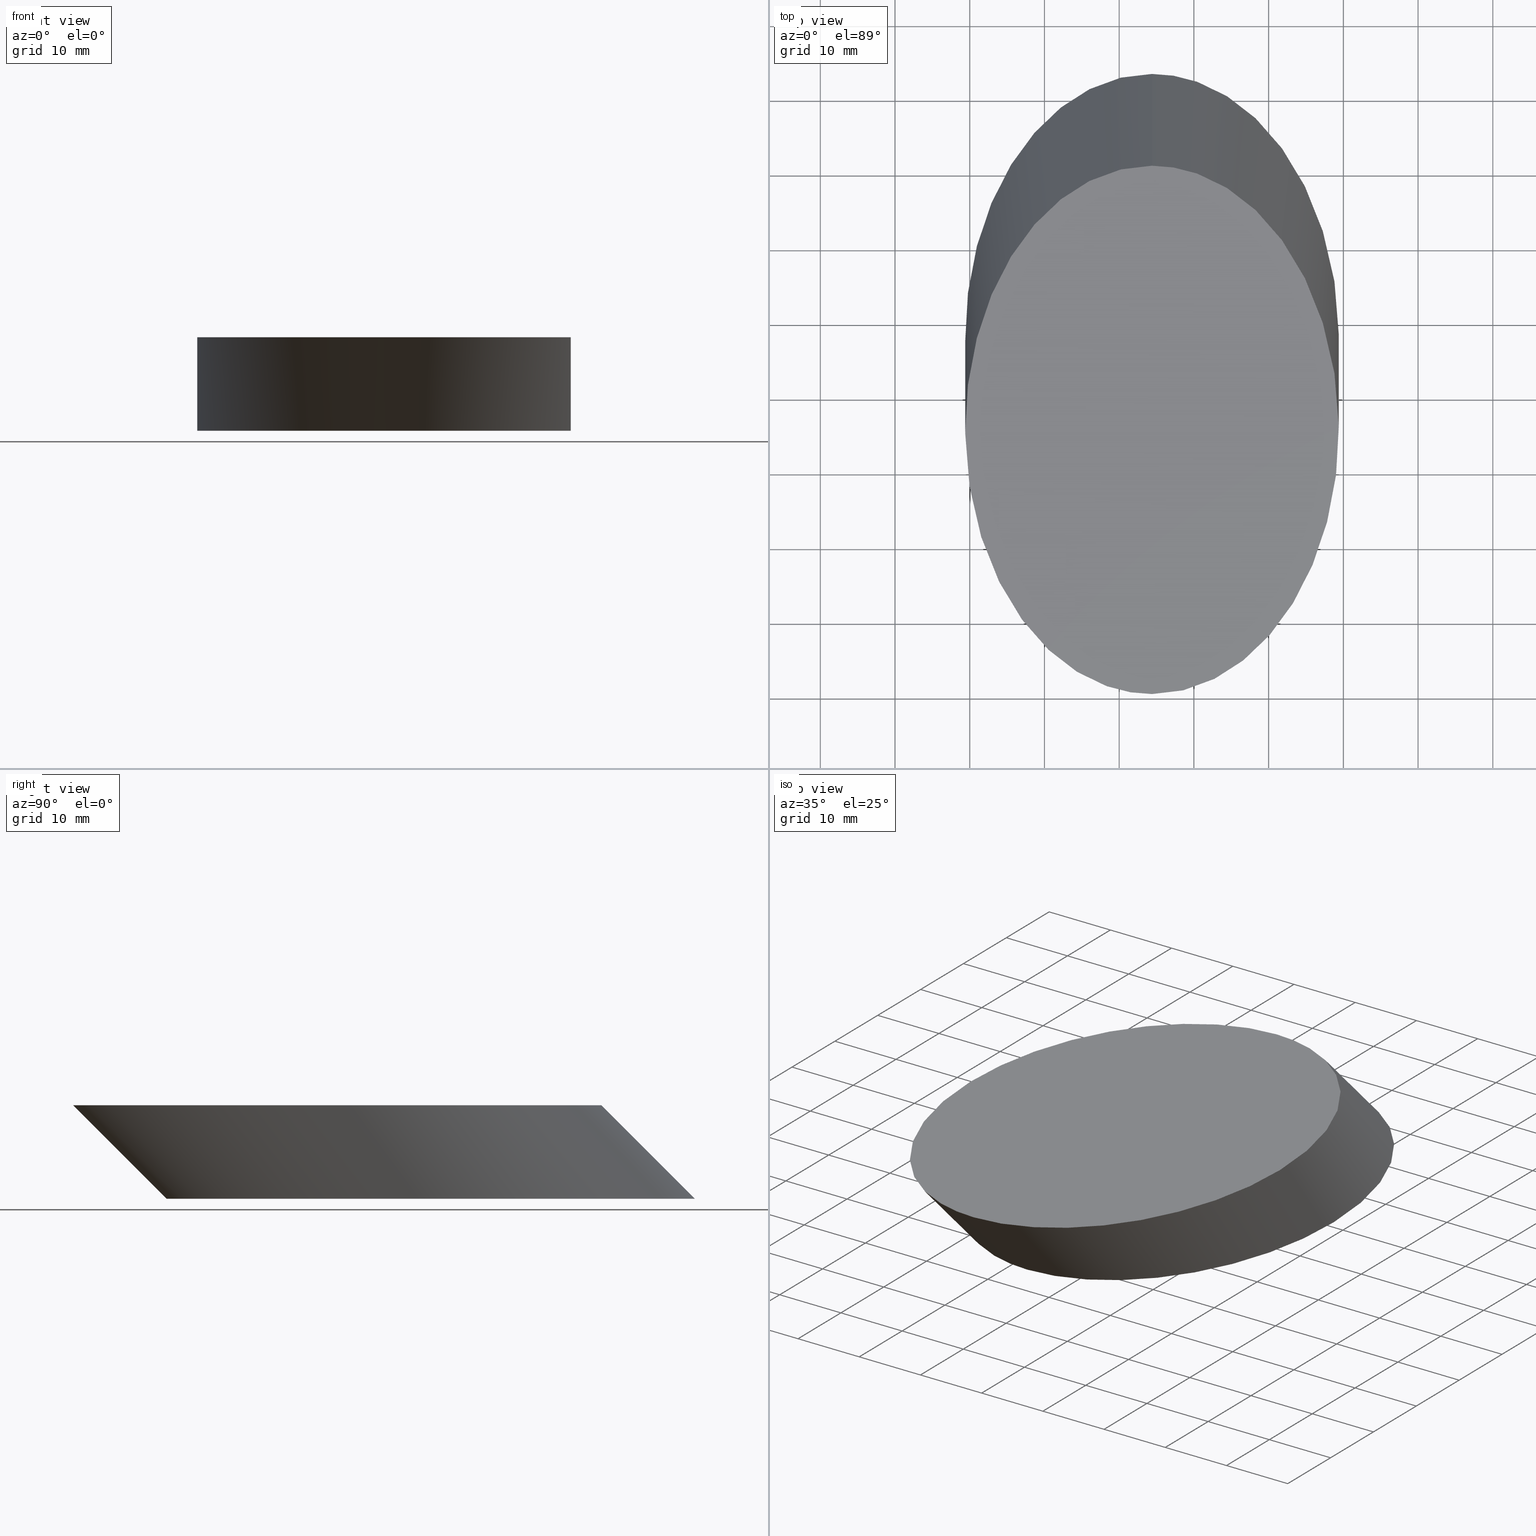
[diagram: canonical four-view strip — front | top / right | iso, engineering-drawing reading convention]
A machine part, canonical four-view strip (front | top / right | iso — engineering-drawing reading convention). The complete STEP part file that produces these views, byte-faithful:
ISO-10303-21;
HEADER;
FILE_DESCRIPTION (( 'STEP AP214' ),
    '1' );
FILE_NAME ('290004.STEP',
    '2019-08-12T02:04:07',
    ( '' ),
    ( '' ),
    'SwSTEP 2.0',
    'SolidWorks 2016',
    '' );
FILE_SCHEMA (( 'AUTOMOTIVE_DESIGN' ));
ENDSEC;

DATA;
#1 = ADVANCED_FACE ( 'NONE', ( #28 ), #76, .T. ) ;
#2 = FACE_OUTER_BOUND ( 'NONE', #49, .T. ) ;
#3 =( BOUNDED_SURFACE ( )  B_SPLINE_SURFACE ( 3, 1, ( 
 ( #135, #66 ),
 ( #69, #111 ),
 ( #31, #12 ),
 ( #85, #72 ) ),
 .UNSPECIFIED., .F., .F., .F. ) 
 B_SPLINE_SURFACE_WITH_KNOTS ( ( 4, 4 ),
 ( 2, 2 ),
 ( 0.0000000000000000000, 1.000000000000000000 ),
 ( 0.0000000000000000000, 1.000000000000000000 ),
 .UNSPECIFIED. ) 
 GEOMETRIC_REPRESENTATION_ITEM ( )  RATIONAL_B_SPLINE_SURFACE ( (
 ( 1.000000000000000000, 1.000000000000000000),
 ( 0.3333333333333333700, 0.3333333333333333700),
 ( 0.3333333333333333700, 0.3333333333333333700),
 ( 1.000000000000000000, 1.000000000000000000) ) ) 
 REPRESENTATION_ITEM ( '' )  SURFACE ( )  );
#4 = PRODUCT_DEFINITION ( 'δ֪', '', #24, #109 ) ;
#5 = PLANE ( 'NONE',  #132 ) ;
#6 = CARTESIAN_POINT ( 'NONE',  ( 4.392382981716055600, 83.65051942170029500, -12.50164789137814300 ) ) ;
#7 =( NAMED_UNIT ( * ) SI_UNIT ( $, .STERADIAN. ) SOLID_ANGLE_UNIT ( ) );
#8 = CARTESIAN_POINT ( 'NONE',  ( 54.39238298171605400, 0.4288715303221030100, 0.0000000000000000000 ) ) ;
#9 = ORIENTED_EDGE ( 'NONE', *, *, #15, .F. ) ;
#10 = PRODUCT ( '290004', '290004', '', ( #46 ) ) ;
#11 = PRODUCT_DEFINITION_SHAPE ( 'NONE', 'NONE',  #4 ) ;
#12 = CARTESIAN_POINT ( 'NONE',  ( 4.392382981716055600, 0.4288715303221168300, -2.602085213965210200E-015 ) ) ;
#13 = LINE ( 'NONE', #97, #133 ) ;
#14 =( BOUNDED_CURVE ( )  B_SPLINE_CURVE ( 3, ( #52, #101, #82, #146 ),
 .UNSPECIFIED., .F., .T. ) 
 B_SPLINE_CURVE_WITH_KNOTS ( ( 4, 4 ),
 ( 3.141592653589793100, 6.283185307179586200 ),
 .UNSPECIFIED. ) 
 CURVE ( )  GEOMETRIC_REPRESENTATION_ITEM ( )  RATIONAL_B_SPLINE_CURVE ( ( 1.000000000000000000, 0.3333333333333333700, 0.3333333333333333700, 1.000000000000000000 ) ) 
 REPRESENTATION_ITEM ( '' )  );
#15 = EDGE_CURVE ( 'NONE', #40, #88, #94, .T. ) ;
#16 = CARTESIAN_POINT ( 'NONE',  ( 54.39238298171605400, 35.78887153032210500, 0.0000000000000000000 ) ) ;
#17 =( GEOMETRIC_REPRESENTATION_CONTEXT ( 3 ) GLOBAL_UNCERTAINTY_ASSIGNED_CONTEXT ( ( #25 ) ) GLOBAL_UNIT_ASSIGNED_CONTEXT ( ( #106, #118, #61 ) ) REPRESENTATION_CONTEXT ( 'NONE', 'WORKASPACE' ) );
#18 = CARTESIAN_POINT ( 'NONE',  ( 54.39238298171605400, 48.29051942170028900, -12.50164789137814100 ) ) ;
#19 = SURFACE_SIDE_STYLE ('',( #34 ) ) ;
#20 = CARTESIAN_POINT ( 'NONE',  ( 54.39238298171605400, 0.4288715303221082300, -5.204170427930421300E-015 ) ) ;
#21 = ORIENTED_EDGE ( 'NONE', *, *, #23, .T. ) ;
#22 = ORIENTED_EDGE ( 'NONE', *, *, #23, .F. ) ;
#23 = EDGE_CURVE ( 'NONE', #88, #40, #14, .T. ) ;
#24 = PRODUCT_DEFINITION_FORMATION_WITH_SPECIFIED_SOURCE ( '�κ�', '', #10, .NOT_KNOWN. ) ;
#25 = UNCERTAINTY_MEASURE_WITH_UNIT (LENGTH_MEASURE( 1.000000000000000100E-005 ), #106, 'distance_accuracy_value', 'NONE');
#26 = DIRECTION ( 'NONE',  ( 1.000000000000000000, 0.0000000000000000000, -0.0000000000000000000 ) ) ;
#27 = PRESENTATION_LAYER_ASSIGNMENT (  '', '', ( #45 ) ) ;
#28 = FACE_OUTER_BOUND ( 'NONE', #53, .T. ) ;
#29 =( BOUNDED_CURVE ( )  B_SPLINE_CURVE ( 3, ( #105, #122, #121, #81 ),
 .UNSPECIFIED., .F., .T. ) 
 B_SPLINE_CURVE_WITH_KNOTS ( ( 4, 4 ),
 ( 0.0000000000000000000, 3.141592653589793100 ),
 .UNSPECIFIED. ) 
 CURVE ( )  GEOMETRIC_REPRESENTATION_ITEM ( )  RATIONAL_B_SPLINE_CURVE ( ( 1.000000000000000000, 0.3333333333333333700, 0.3333333333333333700, 1.000000000000000000 ) ) 
 REPRESENTATION_ITEM ( '' )  );
#30 =( NAMED_UNIT ( * ) PLANE_ANGLE_UNIT ( ) SI_UNIT ( $, .RADIAN. ) );
#31 = CARTESIAN_POINT ( 'NONE',  ( 4.392382981716055600, 12.93051942170029600, -12.50164789137813900 ) ) ;
#32 = SURFACE_STYLE_USAGE ( .BOTH. , #19 ) ;
#33 = APPLICATION_PROTOCOL_DEFINITION ( 'draft international standard', 'automotive_design', 1998, #70 ) ;
#34 = SURFACE_STYLE_FILL_AREA ( #43 ) ;
#35 = DIRECTION ( 'NONE',  ( 1.000000000000000000, 0.0000000000000000000, 0.0000000000000000000 ) ) ;
#36 = SHAPE_DEFINITION_REPRESENTATION ( #11, #102 ) ;
#37 = ORIENTED_EDGE ( 'NONE', *, *, #83, .F. ) ;
#38 = STYLED_ITEM ( 'NONE', ( #75 ), #102 ) ;
#39 = PRESENTATION_LAYER_ASSIGNMENT (  '', '', ( #38 ) ) ;
#40 = VERTEX_POINT ( 'NONE', #103 ) ;
#41 = ORIENTED_EDGE ( 'NONE', *, *, #15, .T. ) ;
#42 = DIRECTION ( 'NONE',  ( 0.0000000000000000000, -0.7071067811865487900, 0.7071067811865463500 ) ) ;
#43 = FILL_AREA_STYLE ('',( #59 ) ) ;
#44 = SURFACE_STYLE_FILL_AREA ( #124 ) ;
#45 = STYLED_ITEM ( 'NONE', ( #51 ), #110 ) ;
#46 = PRODUCT_CONTEXT ( 'NONE', #70, 'mechanical' ) ;
#47 = APPLICATION_CONTEXT ( 'automotive_design' ) ;
#48 =( NAMED_UNIT ( * ) SI_UNIT ( $, .STERADIAN. ) SOLID_ANGLE_UNIT ( ) );
#49 = EDGE_LOOP ( 'NONE', ( #41, #86, #37, #65 ) ) ;
#50 = ADVANCED_FACE ( 'NONE', ( #138 ), #5, .F. ) ;
#51 = PRESENTATION_STYLE_ASSIGNMENT (( #32 ) ) ;
#52 = CARTESIAN_POINT ( 'NONE',  ( 54.39238298171605400, 12.93051942170028700, -12.50164789137814100 ) ) ;
#53 = EDGE_LOOP ( 'NONE', ( #114, #131 ) ) ;
#54 = UNCERTAINTY_MEASURE_WITH_UNIT (LENGTH_MEASURE( 1.000000000000000100E-005 ), #68, 'distance_accuracy_value', 'NONE');
#55 = CARTESIAN_POINT ( 'NONE',  ( 54.39238298171605400, 83.65051942170029500, -12.50164789137814100 ) ) ;
#56 = ORIENTED_EDGE ( 'NONE', *, *, #74, .F. ) ;
#57 = CARTESIAN_POINT ( 'NONE',  ( 54.39238298171605400, 12.93051942170028700, -12.50164789137814100 ) ) ;
#58 = DIRECTION ( 'NONE',  ( 1.000000000000000000, 0.0000000000000000000, -0.0000000000000000000 ) ) ;
#59 = FILL_AREA_STYLE_COLOUR ( '', #144 ) ;
#60 = CARTESIAN_POINT ( 'NONE',  ( 104.3923829817160500, 0.4288715303220986300, -5.204170427930420500E-015 ) ) ;
#61 =( NAMED_UNIT ( * ) SI_UNIT ( $, .STERADIAN. ) SOLID_ANGLE_UNIT ( ) );
#62 = LINE ( 'NONE', #112, #148 ) ;
#63 = APPLICATION_PROTOCOL_DEFINITION ( 'draft international standard', 'automotive_design', 1998, #47 ) ;
#64 =( NAMED_UNIT ( * ) PLANE_ANGLE_UNIT ( ) SI_UNIT ( $, .RADIAN. ) );
#65 = ORIENTED_EDGE ( 'NONE', *, *, #107, .F. ) ;
#66 = CARTESIAN_POINT ( 'NONE',  ( 54.39238298171605400, 71.14887153032211100, -1.734723475976807100E-015 ) ) ;
#67 = DIRECTION ( 'NONE',  ( 0.0000000000000000000, -0.7071067811865487900, 0.7071067811865463500 ) ) ;
#68 =( LENGTH_UNIT ( ) NAMED_UNIT ( * ) SI_UNIT ( .MILLI., .METRE. ) );
#69 = CARTESIAN_POINT ( 'NONE',  ( 4.392382981716055600, 83.65051942170029500, -12.50164789137813900 ) ) ;
#70 = APPLICATION_CONTEXT ( 'automotive_design' ) ;
#71 = SURFACE_SIDE_STYLE ('',( #44 ) ) ;
#72 = CARTESIAN_POINT ( 'NONE',  ( 54.39238298171605400, 0.4288715303221064500, -1.734723475976807100E-015 ) ) ;
#73 = ORIENTED_EDGE ( 'NONE', *, *, #107, .T. ) ;
#74 = EDGE_CURVE ( 'NONE', #108, #116, #89, .T. ) ;
#75 = PRESENTATION_STYLE_ASSIGNMENT (( #84 ) ) ;
#76 = PLANE ( 'NONE',  #90 ) ;
#77 = CARTESIAN_POINT ( 'NONE',  ( 54.39238298171605400, 71.14887153032211100, 0.0000000000000000000 ) ) ;
#78 = EDGE_CURVE ( 'NONE', #88, #108, #13, .T. ) ;
#79 = CARTESIAN_POINT ( 'NONE',  ( 54.39238298171605400, 12.93051942170028700, -12.50164789137814100 ) ) ;
#80 = CARTESIAN_POINT ( 'NONE',  ( 54.39238298171605400, 83.65051942170029500, -12.50164789137814100 ) ) ;
#81 = CARTESIAN_POINT ( 'NONE',  ( 54.39238298171605400, 0.4288715303221030100, 0.0000000000000000000 ) ) ;
#82 = CARTESIAN_POINT ( 'NONE',  ( 104.3923829817160700, 83.65051942170029500, -12.50164789137814300 ) ) ;
#83 = EDGE_CURVE ( 'NONE', #116, #108, #29, .T. ) ;
#84 = SURFACE_STYLE_USAGE ( .BOTH. , #71 ) ;
#85 = CARTESIAN_POINT ( 'NONE',  ( 54.39238298171605400, 12.93051942170028700, -12.50164789137814100 ) ) ;
#86 = ORIENTED_EDGE ( 'NONE', *, *, #78, .T. ) ;
#87 = MECHANICAL_DESIGN_GEOMETRIC_PRESENTATION_REPRESENTATION (  '', ( #45 ), #117 ) ;
#88 = VERTEX_POINT ( 'NONE', #57 ) ;
#89 =( BOUNDED_CURVE ( )  B_SPLINE_CURVE ( 3, ( #96, #115, #95, #147 ),
 .UNSPECIFIED., .F., .T. ) 
 B_SPLINE_CURVE_WITH_KNOTS ( ( 4, 4 ),
 ( 3.141592653589793100, 6.283185307179586200 ),
 .UNSPECIFIED. ) 
 CURVE ( )  GEOMETRIC_REPRESENTATION_ITEM ( )  RATIONAL_B_SPLINE_CURVE ( ( 1.000000000000000000, 0.3333333333333333700, 0.3333333333333333700, 1.000000000000000000 ) ) 
 REPRESENTATION_ITEM ( '' )  );
#90 = AXIS2_PLACEMENT_3D ( 'NONE', #16, #92, #26 ) ;
#91 = CARTESIAN_POINT ( 'NONE',  ( 4.392382981716055600, 12.93051942170030000, -12.50164789137814300 ) ) ;
#92 = DIRECTION ( 'NONE',  ( 0.0000000000000000000, 0.0000000000000000000, 1.000000000000000000 ) ) ;
#93 = ORIENTED_EDGE ( 'NONE', *, *, #78, .F. ) ;
#94 =( BOUNDED_CURVE ( )  B_SPLINE_CURVE ( 3, ( #55, #6, #91, #100 ),
 .UNSPECIFIED., .F., .T. ) 
 B_SPLINE_CURVE_WITH_KNOTS ( ( 4, 4 ),
 ( 0.0000000000000000000, 3.141592653589793100 ),
 .UNSPECIFIED. ) 
 CURVE ( )  GEOMETRIC_REPRESENTATION_ITEM ( )  RATIONAL_B_SPLINE_CURVE ( ( 1.000000000000000000, 0.3333333333333333700, 0.3333333333333333700, 1.000000000000000000 ) ) 
 REPRESENTATION_ITEM ( '' )  );
#95 = CARTESIAN_POINT ( 'NONE',  ( 104.3923829817160700, 71.14887153032209700, 0.0000000000000000000 ) ) ;
#96 = CARTESIAN_POINT ( 'NONE',  ( 54.39238298171605400, 0.4288715303221030100, 0.0000000000000000000 ) ) ;
#97 = CARTESIAN_POINT ( 'NONE',  ( 54.39238298171605400, 12.93051942170028700, -12.50164789137814100 ) ) ;
#98 = ADVANCED_FACE ( 'NONE', ( #125 ), #139, .T. ) ;
#99 = MECHANICAL_DESIGN_GEOMETRIC_PRESENTATION_REPRESENTATION (  '', ( #38 ), #17 ) ;
#100 = CARTESIAN_POINT ( 'NONE',  ( 54.39238298171605400, 12.93051942170028700, -12.50164789137814100 ) ) ;
#101 = CARTESIAN_POINT ( 'NONE',  ( 104.3923829817160700, 12.93051942170027900, -12.50164789137814300 ) ) ;
#102 = ADVANCED_BREP_SHAPE_REPRESENTATION ( '290004', ( #110, #134 ), #120 ) ;
#103 = CARTESIAN_POINT ( 'NONE',  ( 54.39238298171605400, 83.65051942170029500, -12.50164789137814100 ) ) ;
#104 = CARTESIAN_POINT ( 'NONE',  ( 104.3923829817160500, 12.93051942170027900, -12.50164789137813900 ) ) ;
#105 = CARTESIAN_POINT ( 'NONE',  ( 54.39238298171605400, 71.14887153032211100, 0.0000000000000000000 ) ) ;
#106 =( LENGTH_UNIT ( ) NAMED_UNIT ( * ) SI_UNIT ( .MILLI., .METRE. ) );
#107 = EDGE_CURVE ( 'NONE', #40, #116, #62, .T. ) ;
#108 = VERTEX_POINT ( 'NONE', #8 ) ;
#109 = PRODUCT_DEFINITION_CONTEXT ( 'detailed design', #47, 'design' ) ;
#110 = MANIFOLD_SOLID_BREP ( '͹̨-����2', #130 ) ;
#111 = CARTESIAN_POINT ( 'NONE',  ( 4.392382981716055600, 71.14887153032209700, -2.602085213965210200E-015 ) ) ;
#112 = CARTESIAN_POINT ( 'NONE',  ( 54.39238298171605400, 83.65051942170029500, -12.50164789137814100 ) ) ;
#113 = CARTESIAN_POINT ( 'NONE',  ( 104.3923829817160500, 83.65051942170029500, -12.50164789137813900 ) ) ;
#114 = ORIENTED_EDGE ( 'NONE', *, *, #83, .T. ) ;
#115 = CARTESIAN_POINT ( 'NONE',  ( 104.3923829817160700, 0.4288715303220943500, 0.0000000000000000000 ) ) ;
#116 = VERTEX_POINT ( 'NONE', #77 ) ;
#117 =( GEOMETRIC_REPRESENTATION_CONTEXT ( 3 ) GLOBAL_UNCERTAINTY_ASSIGNED_CONTEXT ( ( #54 ) ) GLOBAL_UNIT_ASSIGNED_CONTEXT ( ( #68, #30, #7 ) ) REPRESENTATION_CONTEXT ( 'NONE', 'WORKASPACE' ) );
#118 =( NAMED_UNIT ( * ) PLANE_ANGLE_UNIT ( ) SI_UNIT ( $, .RADIAN. ) );
#119 = DIRECTION ( 'NONE',  ( 0.0000000000000000000, 0.0000000000000000000, 1.000000000000000000 ) ) ;
#120 =( GEOMETRIC_REPRESENTATION_CONTEXT ( 3 ) GLOBAL_UNCERTAINTY_ASSIGNED_CONTEXT ( ( #126 ) ) GLOBAL_UNIT_ASSIGNED_CONTEXT ( ( #127, #64, #48 ) ) REPRESENTATION_CONTEXT ( 'NONE', 'WORKASPACE' ) );
#121 = CARTESIAN_POINT ( 'NONE',  ( 4.392382981716055600, 0.4288715303221117800, 0.0000000000000000000 ) ) ;
#122 = CARTESIAN_POINT ( 'NONE',  ( 4.392382981716055600, 71.14887153032209700, 0.0000000000000000000 ) ) ;
#123 = CARTESIAN_POINT ( 'NONE',  ( 54.39238298171605400, 71.14887153032211100, -5.204170427930421300E-015 ) ) ;
#124 = FILL_AREA_STYLE ('',( #140 ) ) ;
#125 = FACE_OUTER_BOUND ( 'NONE', #129, .T. ) ;
#126 = UNCERTAINTY_MEASURE_WITH_UNIT (LENGTH_MEASURE( 1.000000000000000100E-005 ), #127, 'distance_accuracy_value', 'NONE');
#127 =( LENGTH_UNIT ( ) NAMED_UNIT ( * ) SI_UNIT ( .MILLI., .METRE. ) );
#128 = DIRECTION ( 'NONE',  ( 0.0000000000000000000, 0.0000000000000000000, 1.000000000000000000 ) ) ;
#129 = EDGE_LOOP ( 'NONE', ( #93, #21, #73, #56 ) ) ;
#130 = CLOSED_SHELL ( 'NONE', ( #141, #98, #50, #1 ) ) ;
#131 = ORIENTED_EDGE ( 'NONE', *, *, #74, .T. ) ;
#132 = AXIS2_PLACEMENT_3D ( 'NONE', #18, #119, #58 ) ;
#133 = VECTOR ( 'NONE', #67, 1000.000000000000000 ) ;
#134 = AXIS2_PLACEMENT_3D ( 'NONE', #145, #128, #35 ) ;
#135 = CARTESIAN_POINT ( 'NONE',  ( 54.39238298171605400, 83.65051942170029500, -12.50164789137814100 ) ) ;
#136 = PRODUCT_RELATED_PRODUCT_CATEGORY ( 'part', '', ( #10 ) ) ;
#137 = CARTESIAN_POINT ( 'NONE',  ( 104.3923829817160500, 71.14887153032209700, -5.204170427930420500E-015 ) ) ;
#138 = FACE_OUTER_BOUND ( 'NONE', #142, .T. ) ;
#139 =( BOUNDED_SURFACE ( )  B_SPLINE_SURFACE ( 3, 1, ( 
 ( #79, #20 ),
 ( #104, #60 ),
 ( #113, #137 ),
 ( #80, #123 ) ),
 .UNSPECIFIED., .F., .F., .F. ) 
 B_SPLINE_SURFACE_WITH_KNOTS ( ( 4, 4 ),
 ( 2, 2 ),
 ( 0.0000000000000000000, 1.000000000000000000 ),
 ( 0.0000000000000000000, 1.000000000000000000 ),
 .UNSPECIFIED. ) 
 GEOMETRIC_REPRESENTATION_ITEM ( )  RATIONAL_B_SPLINE_SURFACE ( (
 ( 1.000000000000000000, 1.000000000000000000),
 ( 0.3333333333333333700, 0.3333333333333333700),
 ( 0.3333333333333333700, 0.3333333333333333700),
 ( 1.000000000000000000, 1.000000000000000000) ) ) 
 REPRESENTATION_ITEM ( '' )  SURFACE ( )  );
#140 = FILL_AREA_STYLE_COLOUR ( '', #143 ) ;
#141 = ADVANCED_FACE ( 'NONE', ( #2 ), #3, .T. ) ;
#142 = EDGE_LOOP ( 'NONE', ( #9, #22 ) ) ;
#143 = COLOUR_RGB ( '',1.000000000000000000, 1.000000000000000000, 1.000000000000000000 ) ;
#144 = COLOUR_RGB ( '',1.000000000000000000, 1.000000000000000000, 1.000000000000000000 ) ;
#145 = CARTESIAN_POINT ( 'NONE',  ( 0.0000000000000000000, 0.0000000000000000000, 0.0000000000000000000 ) ) ;
#146 = CARTESIAN_POINT ( 'NONE',  ( 54.39238298171605400, 83.65051942170029500, -12.50164789137814100 ) ) ;
#147 = CARTESIAN_POINT ( 'NONE',  ( 54.39238298171605400, 71.14887153032211100, 0.0000000000000000000 ) ) ;
#148 = VECTOR ( 'NONE', #42, 1000.000000000000000 ) ;
ENDSEC;
END-ISO-10303-21;
